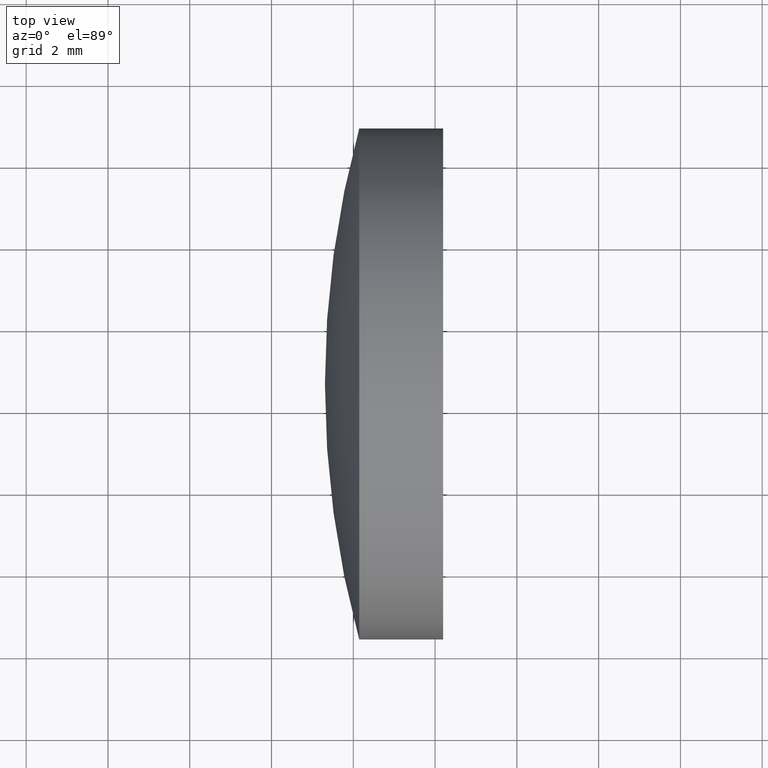
[diagram: clean part render]
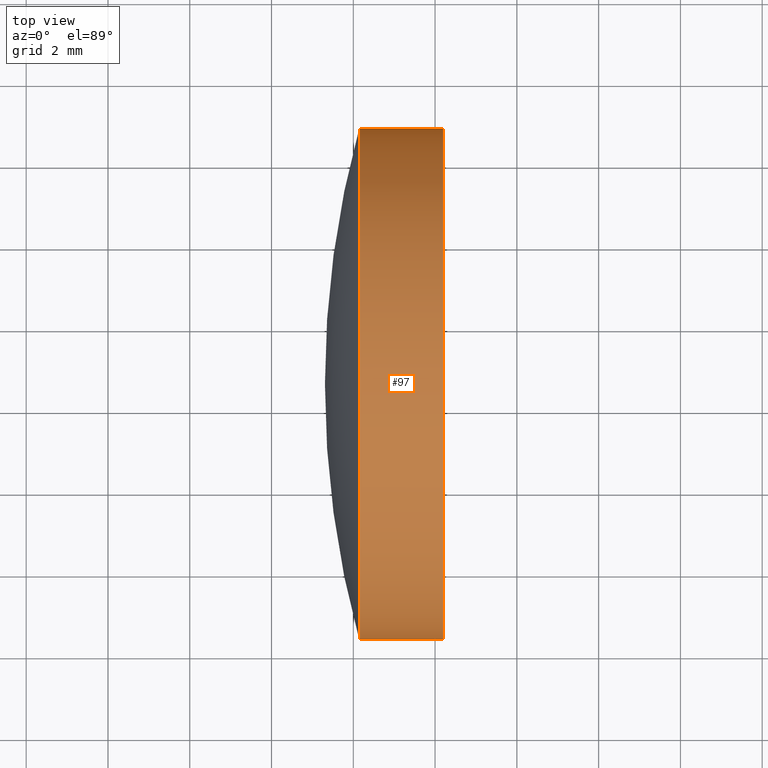
[diagram: same view with one face highlighted and labeled with its STEP entity id]
A machine part, top view. The second image highlights one B-rep face of the part: STEP entity #97.
In plain terms, the highlighted cylindrical surface (partial cylindrical patch) has radius 6.25 mm, axis along (-1, -0, -0).
Its self-contained STEP definition (entity closure, byte-faithful):
#1 = AXIS2_PLACEMENT_3D ( 'NONE', #173, #187, #141 ) ;
#5 = FACE_OUTER_BOUND ( 'NONE', #122, .T. ) ;
#6 = CARTESIAN_POINT ( 'NONE',  ( 64.19521112219439400, 26.35842023547015200, -7.654042494670929000E-016 ) ) ;
#9 = EDGE_CURVE ( 'NONE', #43, #147, #69, .T. ) ;
#10 = ORIENTED_EDGE ( 'NONE', *, *, #60, .T. ) ;
#12 = LINE ( 'NONE', #16, #47 ) ;
#14 = ORIENTED_EDGE ( 'NONE', *, *, #9, .F. ) ;
#15 = VERTEX_POINT ( 'NONE', #6 ) ;
#16 = CARTESIAN_POINT ( 'NONE',  ( 57.97224564898159100, 26.35842023547016700, 0.0000000000000000000 ) ) ;
#17 = EDGE_CURVE ( 'NONE', #15, #46, #35, .T. ) ;
#27 = CARTESIAN_POINT ( 'NONE',  ( 62.14504908412190100, 32.60842023547016300, 0.0000000000000000000 ) ) ;
#35 = CIRCLE ( 'NONE', #174, 6.249999999999995600 ) ;
#43 = VERTEX_POINT ( 'NONE', #48 ) ;
#46 = VERTEX_POINT ( 'NONE', #186 ) ;
#47 = VECTOR ( 'NONE', #101, 1000.000000000000000 ) ;
#48 = CARTESIAN_POINT ( 'NONE',  ( 62.14504908412190100, 26.35842023547016300, -7.654042494670948700E-016 ) ) ;
#52 = EDGE_CURVE ( 'NONE', #15, #43, #12, .T. ) ;
#60 = EDGE_CURVE ( 'NONE', #46, #147, #87, .T. ) ;
#62 = DIRECTION ( 'NONE',  ( -1.000000000000000000, -6.937607244762875000E-016, -0.0000000000000000000 ) ) ;
#69 = CIRCLE ( 'NONE', #134, 6.249999999999995600 ) ;
#76 = ORIENTED_EDGE ( 'NONE', *, *, #52, .F. ) ;
#80 = CARTESIAN_POINT ( 'NONE',  ( 64.19521112219439400, 32.60842023547017000, 0.0000000000000000000 ) ) ;
#87 = LINE ( 'NONE', #132, #180 ) ;
#96 = DIRECTION ( 'NONE',  ( 0.0000000000000000000, -1.000000000000000000, 0.0000000000000000000 ) ) ;
#97 = ADVANCED_FACE ( 'NONE', ( #5 ), #189, .T. ) ;
#101 = DIRECTION ( 'NONE',  ( -1.000000000000000000, -6.937607244762875000E-016, -0.0000000000000000000 ) ) ;
#118 = CARTESIAN_POINT ( 'NONE',  ( 62.14504908412188700, 38.85842023547015600, 0.0000000000000000000 ) ) ;
#122 = EDGE_LOOP ( 'NONE', ( #124, #10, #14, #76 ) ) ;
#124 = ORIENTED_EDGE ( 'NONE', *, *, #17, .T. ) ;
#130 = DIRECTION ( 'NONE',  ( -1.000000000000000000, -6.937607244762875000E-016, -0.0000000000000000000 ) ) ;
#132 = CARTESIAN_POINT ( 'NONE',  ( 57.97224564898157700, 38.85842023547016300, 7.654042494670950700E-016 ) ) ;
#134 = AXIS2_PLACEMENT_3D ( 'NONE', #27, #62, #179 ) ;
#141 = DIRECTION ( 'NONE',  ( 1.110223024625157300E-015, -1.000000000000000000, 0.0000000000000000000 ) ) ;
#147 = VERTEX_POINT ( 'NONE', #118 ) ;
#150 = DIRECTION ( 'NONE',  ( -1.000000000000000000, -6.937607244762875000E-016, -0.0000000000000000000 ) ) ;
#173 = CARTESIAN_POINT ( 'NONE',  ( 57.97224564898158400, 32.60842023547016300, 0.0000000000000000000 ) ) ;
#174 = AXIS2_PLACEMENT_3D ( 'NONE', #80, #150, #96 ) ;
#179 = DIRECTION ( 'NONE',  ( 1.110223024625157300E-015, -1.000000000000000000, 0.0000000000000000000 ) ) ;
#180 = VECTOR ( 'NONE', #130, 1000.000000000000000 ) ;
#186 = CARTESIAN_POINT ( 'NONE',  ( 64.19521112219439400, 38.85842023547014900, 0.0000000000000000000 ) ) ;
#187 = DIRECTION ( 'NONE',  ( -1.000000000000000000, -6.937607244762875000E-016, -0.0000000000000000000 ) ) ;
#189 = CYLINDRICAL_SURFACE ( 'NONE', #1, 6.249999999999995600 ) ;